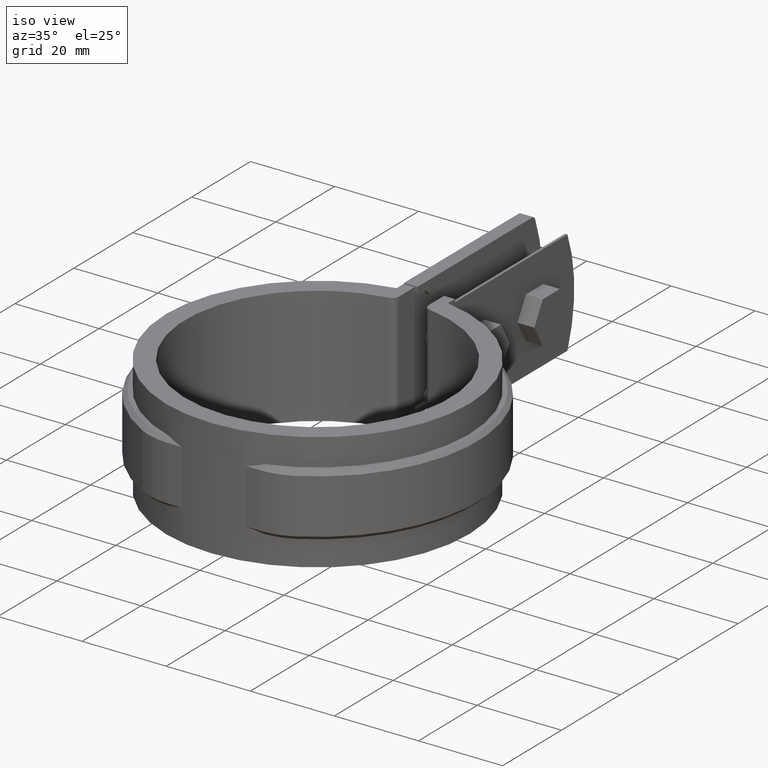
[diagram: clean part render]
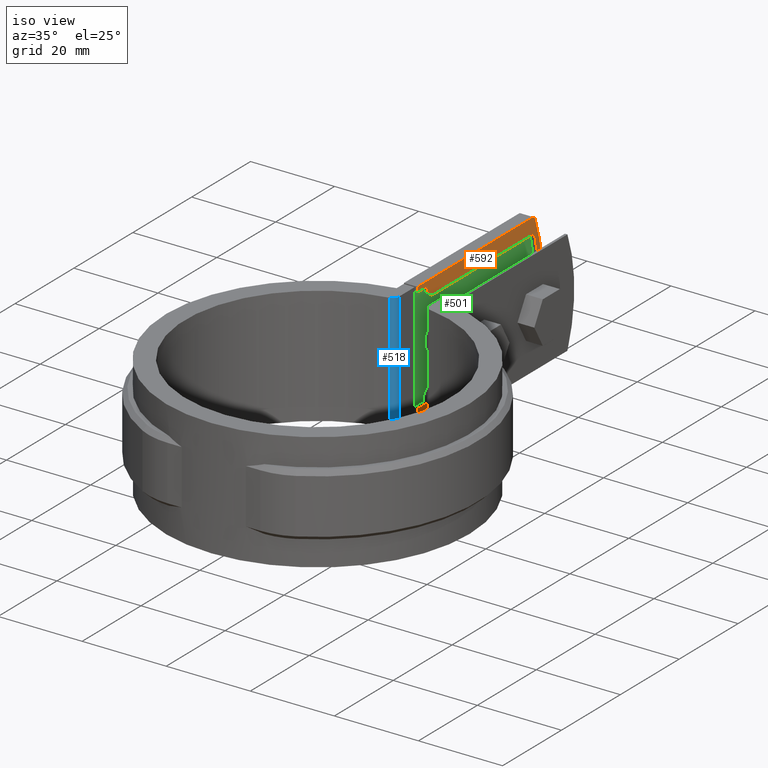
[diagram: same view with three faces highlighted in distinct colors, each labeled with its STEP entity id]
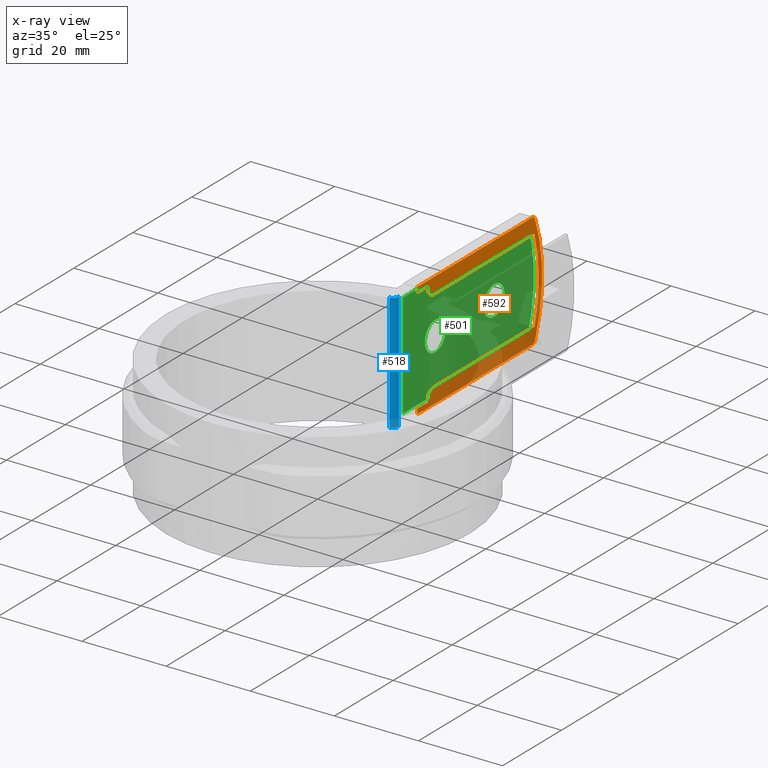
[diagram: x-ray of the same camera — body ghosted, the three highlighted faces saturated]
A machine part, iso view with three faces highlighted in distinct colors.
The next image is the same camera in x-ray (body ghosted, the three faces saturated) — at least one of them is partly hidden behind the body in this view.
Their STEP definitions:

[orange] entity #592 — the highlighted planar face has unit normal (1, -0, 0).
#592 = ADVANCED_FACE( '', ( #1109 ), #1110, .T. );
#1109 = FACE_OUTER_BOUND( '', #2131, .T. );
#1110 = PLANE( '', #2132 );
#2131 = EDGE_LOOP( '', ( #5286, #5287, #5288, #5289, #5290, #5291, #5292, #5293, #5294, #5295, #5296, #5297, #5298, #5299, #5300, #5301 ) );
#2132 = AXIS2_PLACEMENT_3D( '', #5302, #5303, #5304 );
#5286 = ORIENTED_EDGE( '', *, *, #7408, .T. );
#5287 = ORIENTED_EDGE( '', *, *, #7409, .T. );
#5288 = ORIENTED_EDGE( '', *, *, #7410, .F. );
#5289 = ORIENTED_EDGE( '', *, *, #7411, .F. );
#5290 = ORIENTED_EDGE( '', *, *, #7412, .F. );
#5291 = ORIENTED_EDGE( '', *, *, #7413, .T. );
#5292 = ORIENTED_EDGE( '', *, *, #7414, .T. );
#5293 = ORIENTED_EDGE( '', *, *, #7415, .T. );
#5294 = ORIENTED_EDGE( '', *, *, #7416, .T. );
#5295 = ORIENTED_EDGE( '', *, *, #7417, .F. );
#5296 = ORIENTED_EDGE( '', *, *, #7418, .T. );
#5297 = ORIENTED_EDGE( '', *, *, #7419, .T. );
#5298 = ORIENTED_EDGE( '', *, *, #7420, .T. );
#5299 = ORIENTED_EDGE( '', *, *, #7421, .T. );
#5300 = ORIENTED_EDGE( '', *, *, #7422, .T. );
#5301 = ORIENTED_EDGE( '', *, *, #7423, .T. );
#5302 = CARTESIAN_POINT( '', ( -3.50000000000018, 44.8936164020063, -12.5000000000032 ) );
#5303 = DIRECTION( '', ( 1.00000000000000, -6.82234018655900E-016, 3.52801195032895E-016 ) );
#5304 = DIRECTION( '', ( 7.65161862187406E-016, 0.924758059784157, -0.380555555555614 ) );
#7408 = EDGE_CURVE( '', #8755, #8756, #8757, .T. );
#7409 = EDGE_CURVE( '', #8756, #8758, #8759, .T. );
#7410 = EDGE_CURVE( '', #8760, #8758, #8761, .T. );
#7411 = EDGE_CURVE( '', #8762, #8760, #8763, .T. );
#7412 = EDGE_CURVE( '', #8764, #8762, #8765, .T. );
#7413 = EDGE_CURVE( '', #8764, #8766, #8767, .T. );
#7414 = EDGE_CURVE( '', #8766, #8768, #8769, .T. );
#7415 = EDGE_CURVE( '', #8768, #8770, #8771, .T. );
#7416 = EDGE_CURVE( '', #8770, #8772, #8773, .T. );
#7417 = EDGE_CURVE( '', #8774, #8772, #8775, .T. );
#7418 = EDGE_CURVE( '', #8774, #8776, #8777, .T. );
#7419 = EDGE_CURVE( '', #8776, #8778, #8779, .T. );
#7420 = EDGE_CURVE( '', #8778, #8780, #8781, .T. );
#7421 = EDGE_CURVE( '', #8780, #8782, #8783, .T. );
#7422 = EDGE_CURVE( '', #8782, #8784, #8785, .T. );
#7423 = EDGE_CURVE( '', #8784, #8755, #8786, .T. );
#8755 = VERTEX_POINT( '', #12198 );
#8756 = VERTEX_POINT( '', #12199 );
#8757 = LINE( '', #12200, #12201 );
#8758 = VERTEX_POINT( '', #12202 );
#8759 = CIRCLE( '', #12203, 35.2000000000000 );
#8760 = VERTEX_POINT( '', #12204 );
#8761 = LINE( '', #12205, #12206 );
#8762 = VERTEX_POINT( '', #12207 );
#8763 = CIRCLE( '', #12208, 1.99999999999964 );
#8764 = VERTEX_POINT( '', #12209 );
#8765 = LINE( '', #12210, #12211 );
#8766 = VERTEX_POINT( '', #12212 );
#8767 = LINE( '', #12213, #12214 );
#8768 = VERTEX_POINT( '', #12215 );
#8769 = LINE( '', #12216, #12217 );
#8770 = VERTEX_POINT( '', #12218 );
#8771 = LINE( '', #12219, #12220 );
#8772 = VERTEX_POINT( '', #12221 );
#8773 = CIRCLE( '', #12222, 0.999999999999821 );
#8774 = VERTEX_POINT( '', #12223 );
#8775 = CIRCLE( '', #12224, 36.4000000000000 );
#8776 = VERTEX_POINT( '', #12225 );
#8777 = CIRCLE( '', #12226, 0.999999999999821 );
#8778 = VERTEX_POINT( '', #12227 );
#8779 = LINE( '', #12228, #12229 );
#8780 = VERTEX_POINT( '', #12230 );
#8781 = LINE( '', #12231, #12232 );
#8782 = VERTEX_POINT( '', #12233 );
#8783 = LINE( '', #12234, #12235 );
#8784 = VERTEX_POINT( '', #12236 );
#8785 = LINE( '', #12237, #12238 );
#8786 = CIRCLE( '', #12239, 1.99999999999964 );
#12198 = CARTESIAN_POINT( '', ( -3.50000000000019, 44.3936164020064, -2.50000000000318 ) );
#12199 = CARTESIAN_POINT( '', ( -3.50000000000016, 78.6432830670208, -2.50000000000318 ) );
#12200 = CARTESIAN_POINT( '', ( -3.50000000000019, 44.3936164020064, -2.50000000000318 ) );
#12201 = VECTOR( '', #14202, 999.999999999941 );
#12202 = CARTESIAN_POINT( '', ( -3.50000000000016, 78.6432830670208, -22.5000000000032 ) );
#12203 = AXIS2_PLACEMENT_3D( '', #14203, #14204, #14205 );
#12204 = CARTESIAN_POINT( '', ( -3.50000000000018, 44.3936164020064, -22.5000000000032 ) );
#12205 = CARTESIAN_POINT( '', ( -3.50000000000018, 44.3936164020064, -22.5000000000032 ) );
#12206 = VECTOR( '', #14206, 999.999999999941 );
#12207 = CARTESIAN_POINT( '', ( -3.50000000000018, 42.3936164020068, -24.5000000000032 ) );
#12208 = AXIS2_PLACEMENT_3D( '', #14207, #14208, #14209 );
#12209 = CARTESIAN_POINT( '', ( -3.50000000000018, 42.3936164020068, -25.0000000000032 ) );
#12210 = CARTESIAN_POINT( '', ( -3.50000000000018, 42.3936164020068, -25.0000000000032 ) );
#12211 = VECTOR( '', #14210, 1000.00000000012 );
#12212 = CARTESIAN_POINT( '', ( -3.50000000000018, 38.8936164020074, -25.0000000000032 ) );
#12213 = CARTESIAN_POINT( '', ( -3.50000000000016, 77.5853584785556, -25.0000000000032 ) );
#12214 = VECTOR( '', #14211, 999.999999999941 );
#12215 = CARTESIAN_POINT( '', ( -3.50000000000018, 38.8936164020074, -26.2000000000032 ) );
#12216 = CARTESIAN_POINT( '', ( -3.50000000000018, 38.8936164020074, -25.0000000000032 ) );
#12217 = VECTOR( '', #14212, 1000.00000000012 );
#12218 = CARTESIAN_POINT( '', ( -3.50000000000016, 77.9370726376910, -26.2000000000032 ) );
#12219 = CARTESIAN_POINT( '', ( -3.50000000000018, 38.8936164020074, -26.2000000000032 ) );
#12220 = VECTOR( '', #14213, 999.999999999941 );
#12221 = CARTESIAN_POINT( '', ( -3.50000000000016, 78.8705036048008, -25.5587570621501 ) );
#12222 = AXIS2_PLACEMENT_3D( '', #14214, #14215, #14216 );
#12223 = CARTESIAN_POINT( '', ( -3.50000000000016, 78.8705036048008, 0.558757062143709 ) );
#12224 = AXIS2_PLACEMENT_3D( '', #14217, #14218, #14219 );
#12225 = CARTESIAN_POINT( '', ( -3.50000000000017, 77.9370726376910, 1.19999999999682 ) );
#12226 = AXIS2_PLACEMENT_3D( '', #14220, #14221, #14222 );
#12227 = CARTESIAN_POINT( '', ( -3.50000000000019, 38.8936164020074, 1.19999999999683 ) );
#12228 = CARTESIAN_POINT( '', ( -3.50000000000017, 78.1849065542309, 1.19999999999682 ) );
#12229 = VECTOR( '', #14223, 999.999999999941 );
#12230 = CARTESIAN_POINT( '', ( -3.50000000000019, 38.8936164020074, -3.17443612388590E-012 ) );
#12231 = CARTESIAN_POINT( '', ( -3.50000000000019, 38.8936164020074, 1.19999999999683 ) );
#12232 = VECTOR( '', #14224, 1000.00000000012 );
#12233 = CARTESIAN_POINT( '', ( -3.50000000000019, 42.3936164020068, -3.18183208431847E-012 ) );
#12234 = CARTESIAN_POINT( '', ( -3.50000000000019, 38.8936164020074, -3.17096667693395E-012 ) );
#12235 = VECTOR( '', #14225, 999.999999999941 );
#12236 = CARTESIAN_POINT( '', ( -3.50000000000019, 42.3936164020068, -0.500000000003173 ) );
#12237 = CARTESIAN_POINT( '', ( -3.50000000000019, 42.3936164020068, -3.18183208431847E-012 ) );
#12238 = VECTOR( '', #14226, 1000.00000000012 );
#12239 = AXIS2_PLACEMENT_3D( '', #14227, #14228, #14229 );
#14202 = DIRECTION( '', ( 6.66766614911954E-016, 1.00000000000000, 1.97370347595946E-018 ) );
#14203 = CARTESIAN_POINT( '', ( -3.50000000000018, 44.8936164020063, -12.5000000000032 ) );
#14204 = DIRECTION( '', ( -1.00000000000000, 6.65444511970929E-016, -3.52801195032895E-016 ) );
#14205 = DIRECTION( '', ( -3.52801195032895E-016, 1.43114686768732E-017, 1.00000000000000 ) );
#14206 = DIRECTION( '', ( 6.66766614911954E-016, 1.00000000000000, 1.97370347595946E-018 ) );
#14207 = CARTESIAN_POINT( '', ( -3.50000000000018, 44.3936164020064, -24.5000000000032 ) );
#14208 = DIRECTION( '', ( -1.00000000000000, 6.63400231144286E-016, -3.71199524710717E-016 ) );
#14209 = DIRECTION( '', ( -6.63400231144286E-016, -1.00000000000000, 2.42032289536753E-016 ) );
#14210 = DIRECTION( '', ( -3.52801195032894E-016, 2.42032289536712E-016, 1.00000000000000 ) );
#14211 = DIRECTION( '', ( -6.66766614911954E-016, -1.00000000000000, 6.98226199081011E-017 ) );
#14212 = DIRECTION( '', ( 3.52801195032894E-016, -2.36356073601865E-016, -1.00000000000000 ) );
#14213 = DIRECTION( '', ( 6.66766614911954E-016, 1.00000000000000, -6.98226199081011E-017 ) );
#14214 = CARTESIAN_POINT( '', ( -3.50000000000016, 77.9370726376910, -25.2000000000032 ) );
#14215 = DIRECTION( '', ( 1.00000000000000, -6.82234018655900E-016, 3.52801195032895E-016 ) );
#14216 = DIRECTION( '', ( 6.82234018655900E-016, 1.00000000000000, -1.25333771139369E-016 ) );
#14217 = CARTESIAN_POINT( '', ( -3.50000000000018, 44.8936164020064, -12.5000000000032 ) );
#14218 = DIRECTION( '', ( -1.00000000000000, 6.97454658812693E-016, -3.52168329192437E-016 ) );
#14219 = DIRECTION( '', ( -3.52168329192437E-016, -9.67108337856225E-017, 1.00000000000000 ) );
#14220 = CARTESIAN_POINT( '', ( -3.50000000000017, 77.9370726376910, 0.199999999996820 ) );
#14221 = DIRECTION( '', ( 1.00000000000000, -6.82234018655900E-016, 3.52801195032895E-016 ) );
#14222 = DIRECTION( '', ( 6.82234018655900E-016, 1.00000000000000, -1.25333771139369E-016 ) );
#14223 = DIRECTION( '', ( -6.66766614911954E-016, -1.00000000000000, 6.98226199081011E-017 ) );
#14224 = DIRECTION( '', ( 3.52801195032894E-016, -2.36356073601865E-016, -1.00000000000000 ) );
#14225 = DIRECTION( '', ( 6.66766614911954E-016, 1.00000000000000, -6.98226199081011E-017 ) );
#14226 = DIRECTION( '', ( 3.52801195032894E-016, -2.42032289536712E-016, -1.00000000000000 ) );
#14227 = CARTESIAN_POINT( '', ( -3.50000000000019, 44.3936164020064, -0.500000000003177 ) );
#14228 = DIRECTION( '', ( 1.00000000000000, -6.63400231144286E-016, 3.34402865355072E-016 ) );
#14229 = DIRECTION( '', ( -6.63400231144286E-016, -1.00000000000000, 3.50452506785323E-016 ) );

[blue] entity #518 — the highlighted cylindrical surface (edge-blend (fillet) strip) has radius 1.5 mm, axis along (0, 0, -1).
#518 = ADVANCED_FACE( '', ( #942 ), #943, .T. );
#942 = FACE_OUTER_BOUND( '', #1704, .T. );
#943 = CYLINDRICAL_SURFACE( '', #1705, 1.50000000000000 );
#1704 = EDGE_LOOP( '', ( #4342, #4343, #4344, #4345 ) );
#1705 = AXIS2_PLACEMENT_3D( '', #4346, #4347, #4348 );
#4342 = ORIENTED_EDGE( '', *, *, #7048, .F. );
#4343 = ORIENTED_EDGE( '', *, *, #7049, .F. );
#4344 = ORIENTED_EDGE( '', *, *, #7050, .F. );
#4345 = ORIENTED_EDGE( '', *, *, #7051, .F. );
#4346 = CARTESIAN_POINT( '', ( -4.99999999999999, 32.6190128606002, -118.310291710332 ) );
#4347 = DIRECTION( '', ( 0.000000000000000, 0.000000000000000, -1.00000000000000 ) );
#4348 = DIRECTION( '', ( 1.00000000000000, 0.000000000000000, 0.000000000000000 ) );
#7048 = EDGE_CURVE( '', #8103, #8104, #8105, .F. );
#7049 = EDGE_CURVE( '', #8106, #8103, #8107, .T. );
#7050 = EDGE_CURVE( '', #8108, #8106, #8109, .T. );
#7051 = EDGE_CURVE( '', #8104, #8108, #8110, .F. );
#8103 = VERTEX_POINT( '', #10757 );
#8104 = VERTEX_POINT( '', #10758 );
#8105 = CIRCLE( '', #10759, 1.50000000000000 );
#8106 = VERTEX_POINT( '', #10760 );
#8107 = LINE( '', #10761, #10762 );
#8108 = VERTEX_POINT( '', #10763 );
#8109 = CIRCLE( '', #10764, 1.50000000000000 );
#8110 = LINE( '', #10765, #10766 );
#10757 = CARTESIAN_POINT( '', ( -4.77272727272726, 31.1363304578456, 1.50000000000000 ) );
#10758 = CARTESIAN_POINT( '', ( -3.49999999999999, 32.6190128606002, 1.50000000000000 ) );
#10759 = AXIS2_PLACEMENT_3D( '', #13715, #13716, #13717 );
#10760 = CARTESIAN_POINT( '', ( -4.77272727272726, 31.1363304578456, -26.5000000000000 ) );
#10761 = CARTESIAN_POINT( '', ( -4.77272727272726, 31.1363304578456, -118.310291710332 ) );
#10762 = VECTOR( '', #13718, 1000.00000000000 );
#10763 = CARTESIAN_POINT( '', ( -3.49999999999999, 32.6190128606002, -26.5000000000000 ) );
#10764 = AXIS2_PLACEMENT_3D( '', #13719, #13720, #13721 );
#10765 = CARTESIAN_POINT( '', ( -3.49999999999999, 32.6190128606002, -26.5000000000000 ) );
#10766 = VECTOR( '', #13722, 1000.00000000000 );
#13715 = CARTESIAN_POINT( '', ( -4.99999999999999, 32.6190128606002, 1.50000000000000 ) );
#13716 = DIRECTION( '', ( 0.000000000000000, 0.000000000000000, -1.00000000000000 ) );
#13717 = DIRECTION( '', ( -1.00000000000000, 0.000000000000000, 0.000000000000000 ) );
#13718 = DIRECTION( '', ( 0.000000000000000, 0.000000000000000, 1.00000000000000 ) );
#13719 = CARTESIAN_POINT( '', ( -4.99999999999999, 32.6190128606002, -26.5000000000000 ) );
#13720 = DIRECTION( '', ( 0.000000000000000, 0.000000000000000, -1.00000000000000 ) );
#13721 = DIRECTION( '', ( -1.00000000000000, 0.000000000000000, 0.000000000000000 ) );
#13722 = DIRECTION( '', ( 0.000000000000000, 0.000000000000000, 1.00000000000000 ) );

[green] entity #501 — the highlighted planar face has unit normal (1, -0, 0).
#501 = ADVANCED_FACE( '', ( #899, #900, #901 ), #902, .T. );
#899 = FACE_BOUND( '', #1651, .T. );
#900 = FACE_OUTER_BOUND( '', #1652, .T. );
#901 = FACE_BOUND( '', #1653, .T. );
#902 = PLANE( '', #1654 );
#1651 = EDGE_LOOP( '', ( #3640 ) );
#1652 = EDGE_LOOP( '', ( #3641, #3642, #3643, #3644 ) );
#1653 = EDGE_LOOP( '', ( #3645 ) );
#1654 = AXIS2_PLACEMENT_3D( '', #3646, #3647, #3648 );
#3640 = ORIENTED_EDGE( '', *, *, #6938, .T. );
#3641 = ORIENTED_EDGE( '', *, *, #6906, .T. );
#3642 = ORIENTED_EDGE( '', *, *, #6838, .T. );
#3643 = ORIENTED_EDGE( '', *, *, #6928, .T. );
#3644 = ORIENTED_EDGE( '', *, *, #6940, .F. );
#3645 = ORIENTED_EDGE( '', *, *, #6939, .T. );
#3646 = CARTESIAN_POINT( '', ( -4.50000000000000, 79.8936164019707, 0.000000000000000 ) );
#3647 = DIRECTION( '', ( 1.00000000000000, -6.12303176911189E-017, 0.000000000000000 ) );
#3648 = DIRECTION( '', ( -6.12303176911189E-017, -1.00000000000000, 0.000000000000000 ) );
#6838 = EDGE_CURVE( '', #7791, #7808, #7810, .T. );
#6906 = EDGE_CURVE( '', #7929, #7791, #7930, .T. );
#6928 = EDGE_CURVE( '', #7808, #7962, #7964, .T. );
#6938 = EDGE_CURVE( '', #7974, #7974, #7975, .F. );
#6939 = EDGE_CURVE( '', #7976, #7976, #7977, .F. );
#6940 = EDGE_CURVE( '', #7929, #7962, #7978, .T. );
#7791 = VERTEX_POINT( '', #9320 );
#7808 = VERTEX_POINT( '', #9341 );
#7810 = LINE( '', #9343, #9344 );
#7929 = VERTEX_POINT( '', #10046 );
#7930 = CIRCLE( '', #10047, 35.0000000000000 );
#7962 = VERTEX_POINT( '', #10114 );
#7964 = LINE( '', #10116, #10117 );
#7974 = VERTEX_POINT( '', #10136 );
#7975 = CIRCLE( '', #10137, 3.50000000000000 );
#7976 = VERTEX_POINT( '', #10138 );
#7977 = CIRCLE( '', #10139, 3.50000000000000 );
#7978 = LINE( '', #10140, #10141 );
#9320 = CARTESIAN_POINT( '', ( -4.49999999999999, 77.5853584785258, 0.000000000000000 ) );
#9341 = CARTESIAN_POINT( '', ( -4.50000000000000, 35.4145450344912, 0.000000000000000 ) );
#9343 = CARTESIAN_POINT( '', ( -4.50000000000000, 79.8936164019707, 0.000000000000000 ) );
#9344 = VECTOR( '', #13131, 1000.00000000000 );
#10046 = CARTESIAN_POINT( '', ( -4.49999999999999, 77.5853584785258, -25.0000000000000 ) );
#10047 = AXIS2_PLACEMENT_3D( '', #13198, #13199, #13200 );
#10114 = CARTESIAN_POINT( '', ( -4.50000000000000, 35.4145450344912, -25.0000000000000 ) );
#10116 = CARTESIAN_POINT( '', ( -4.50000000000000, 35.4145450344912, 0.000000000000000 ) );
#10117 = VECTOR( '', #13238, 1000.00000000000 );
#10136 = CARTESIAN_POINT( '', ( -4.49999999999999, 69.8936164019707, -12.5000000000000 ) );
#10137 = AXIS2_PLACEMENT_3D( '', #13248, #13249, #13250 );
#10138 = CARTESIAN_POINT( '', ( -4.49999999999999, 49.8936164019707, -12.5000000000000 ) );
#10139 = AXIS2_PLACEMENT_3D( '', #13251, #13252, #13253 );
#10140 = CARTESIAN_POINT( '', ( -4.50000000000000, 79.8936164019707, -25.0000000000000 ) );
#10141 = VECTOR( '', #13254, 1000.00000000000 );
#13131 = DIRECTION( '', ( -6.12303176911189E-017, -1.00000000000000, 0.000000000000000 ) );
#13198 = CARTESIAN_POINT( '', ( -4.49999999999999, 44.8936164019708, -12.4999999999999 ) );
#13199 = DIRECTION( '', ( 1.00000000000000, -6.12303176911189E-017, 0.000000000000000 ) );
#13200 = DIRECTION( '', ( 6.12303176911189E-017, 1.00000000000000, 0.000000000000000 ) );
#13238 = DIRECTION( '', ( 0.000000000000000, 0.000000000000000, -1.00000000000000 ) );
#13248 = CARTESIAN_POINT( '', ( -4.49999999999999, 66.3936164019707, -12.5000000000000 ) );
#13249 = DIRECTION( '', ( 1.00000000000000, -6.12303176911189E-017, 0.000000000000000 ) );
#13250 = DIRECTION( '', ( 6.12303176911189E-017, 1.00000000000000, 0.000000000000000 ) );
#13251 = CARTESIAN_POINT( '', ( -4.49999999999999, 46.3936164019707, -12.5000000000000 ) );
#13252 = DIRECTION( '', ( 1.00000000000000, -6.12303176911189E-017, 0.000000000000000 ) );
#13253 = DIRECTION( '', ( 6.12303176911189E-017, 1.00000000000000, 0.000000000000000 ) );
#13254 = DIRECTION( '', ( -6.12303176911189E-017, -1.00000000000000, 0.000000000000000 ) );